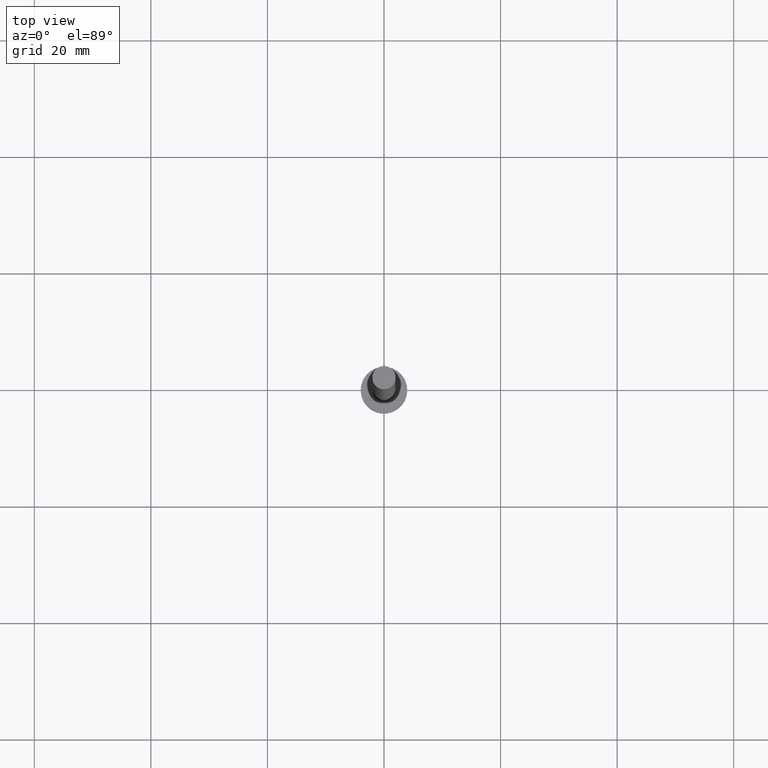
[diagram: clean part render]
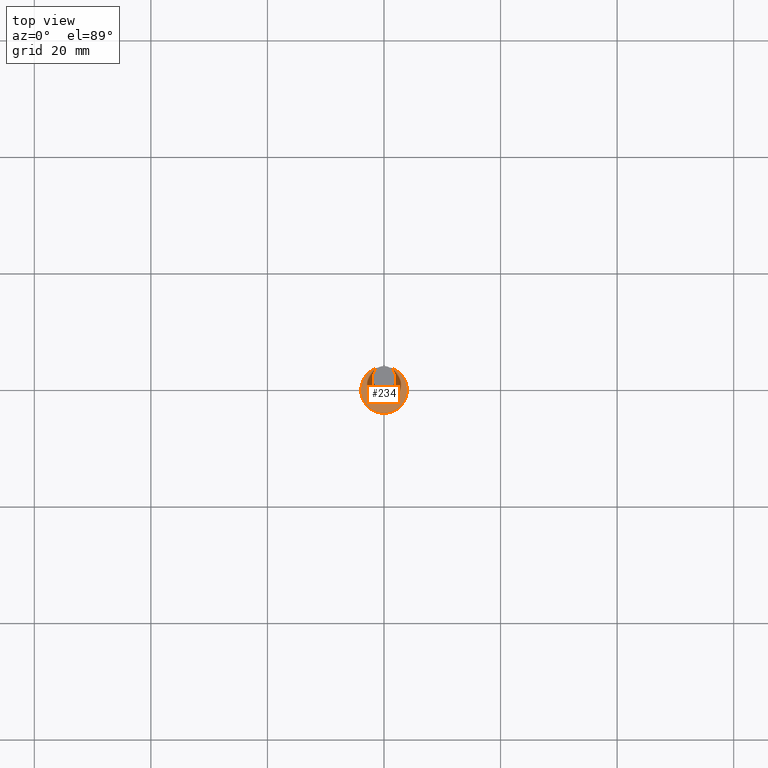
[diagram: same view with one face highlighted and labeled with its STEP entity id]
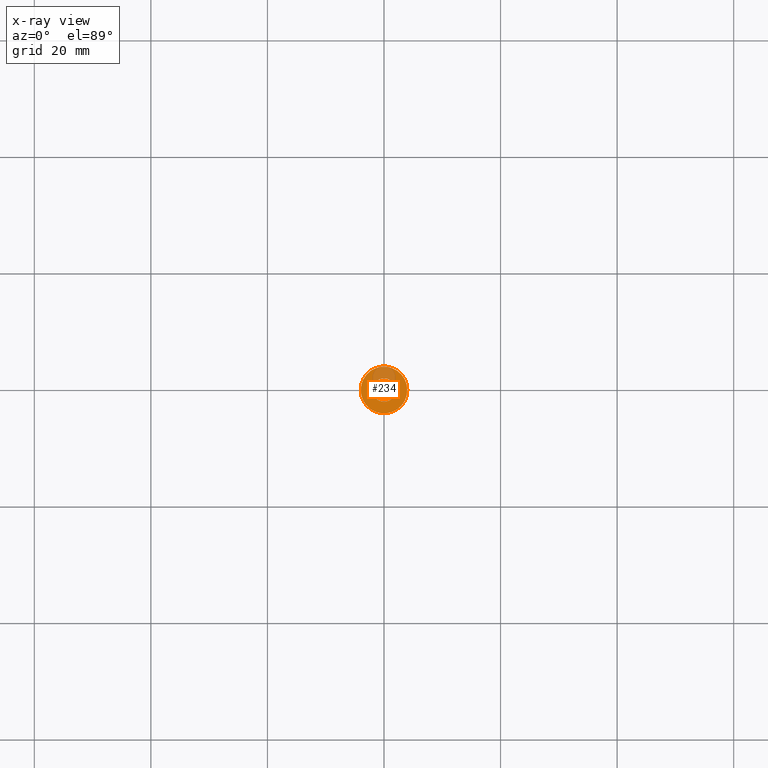
[diagram: x-ray of the same camera — body ghosted, the highlighted face saturated]
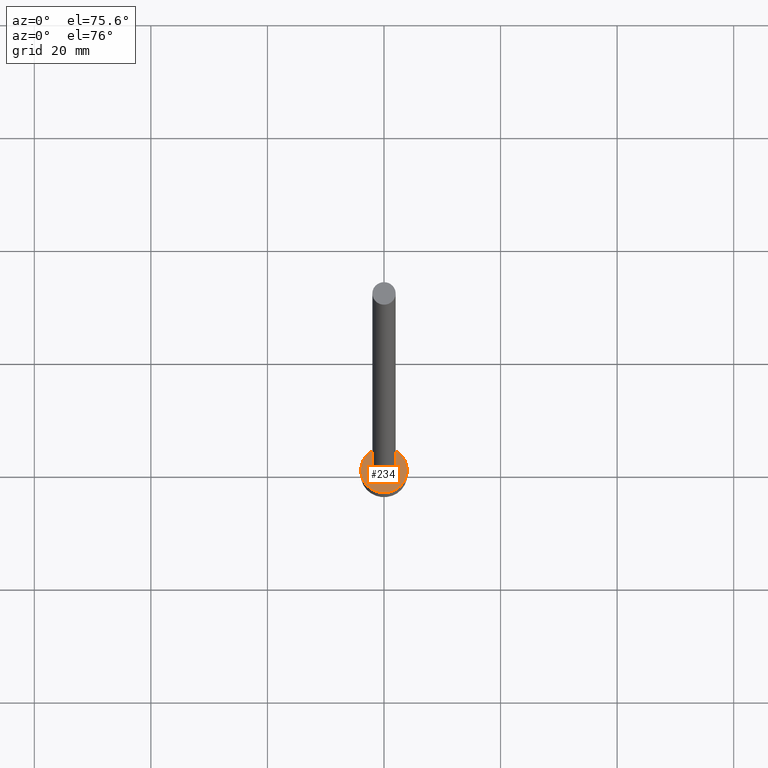
[diagram: same view with one face highlighted and labeled with its STEP entity id]
A machine part, top view. The second image highlights one B-rep face of the part: STEP entity #234.
The next image is the same camera in x-ray: the body ghosted, the highlighted face saturated — about 22% of this face is hidden behind the body in this view.
A second angle (auxiliary view) of the same face is appended — the face is thin or edge-on in the first view.
In plain terms, the highlighted planar face has unit normal (0, 0, 1).
Its self-contained STEP definition (entity closure, byte-faithful):
#7 = CIRCLE ( 'NONE', #86, 2.000000000000000000 ) ;
#24 = CARTESIAN_POINT ( 'NONE',  ( 0.000000000000000000, 0.000000000000000000, 3.000000000000000000 ) ) ;
#27 = CARTESIAN_POINT ( 'NONE',  ( 0.000000000000000000, 0.000000000000000000, 3.000000000000000000 ) ) ;
#30 = DIRECTION ( 'NONE',  ( 1.000000000000000000, 0.000000000000000000, 0.000000000000000000 ) ) ;
#42 = DIRECTION ( 'NONE',  ( 1.000000000000000000, 0.000000000000000000, 0.000000000000000000 ) ) ;
#49 = PLANE ( 'NONE',  #198 ) ;
#51 = VERTEX_POINT ( 'NONE', #57 ) ;
#57 = CARTESIAN_POINT ( 'NONE',  ( -2.000000000000000000, 0.000000000000000000, 3.000000000000000000 ) ) ;
#62 = CARTESIAN_POINT ( 'NONE',  ( 0.000000000000000000, 0.000000000000000000, 3.000000000000000000 ) ) ;
#74 = EDGE_CURVE ( 'NONE', #203, #215, #96, .T. ) ;
#86 = AXIS2_PLACEMENT_3D ( 'NONE', #24, #97, #124 ) ;
#87 = VERTEX_POINT ( 'NONE', #237 ) ;
#94 = DIRECTION ( 'NONE',  ( 0.000000000000000000, 0.000000000000000000, 1.000000000000000000 ) ) ;
#96 = CIRCLE ( 'NONE', #114, 4.000000000000000000 ) ;
#97 = DIRECTION ( 'NONE',  ( 0.000000000000000000, 0.000000000000000000, 1.000000000000000000 ) ) ;
#106 = ORIENTED_EDGE ( 'NONE', *, *, #250, .T. ) ;
#114 = AXIS2_PLACEMENT_3D ( 'NONE', #62, #157, #137 ) ;
#124 = DIRECTION ( 'NONE',  ( 1.000000000000000000, 0.000000000000000000, 0.000000000000000000 ) ) ;
#125 = ORIENTED_EDGE ( 'NONE', *, *, #187, .F. ) ;
#126 = FACE_BOUND ( 'NONE', #226, .T. ) ;
#129 = CARTESIAN_POINT ( 'NONE',  ( 4.000000000000000000, 4.898587196589412829E-16, 3.000000000000000000 ) ) ;
#137 = DIRECTION ( 'NONE',  ( 1.000000000000000000, 0.000000000000000000, 0.000000000000000000 ) ) ;
#143 = DIRECTION ( 'NONE',  ( 0.000000000000000000, 0.000000000000000000, 1.000000000000000000 ) ) ;
#147 = CIRCLE ( 'NONE', #228, 2.000000000000000000 ) ;
#151 = ORIENTED_EDGE ( 'NONE', *, *, #74, .T. ) ;
#152 = CIRCLE ( 'NONE', #194, 4.000000000000000000 ) ;
#157 = DIRECTION ( 'NONE',  ( 0.000000000000000000, 0.000000000000000000, 1.000000000000000000 ) ) ;
#178 = DIRECTION ( 'NONE',  ( 1.000000000000000000, 0.000000000000000000, -0.000000000000000000 ) ) ;
#180 = CARTESIAN_POINT ( 'NONE',  ( 0.000000000000000000, 0.000000000000000000, 3.000000000000000000 ) ) ;
#187 = EDGE_CURVE ( 'NONE', #87, #51, #147, .T. ) ;
#194 = AXIS2_PLACEMENT_3D ( 'NONE', #180, #247, #30 ) ;
#196 = CARTESIAN_POINT ( 'NONE',  ( -4.000000000000000000, 0.000000000000000000, 3.000000000000000000 ) ) ;
#198 = AXIS2_PLACEMENT_3D ( 'NONE', #243, #143, #178 ) ;
#200 = ORIENTED_EDGE ( 'NONE', *, *, #209, .F. ) ;
#203 = VERTEX_POINT ( 'NONE', #196 ) ;
#209 = EDGE_CURVE ( 'NONE', #51, #87, #7, .T. ) ;
#215 = VERTEX_POINT ( 'NONE', #129 ) ;
#221 = FACE_OUTER_BOUND ( 'NONE', #246, .T. ) ;
#226 = EDGE_LOOP ( 'NONE', ( #200, #125 ) ) ;
#228 = AXIS2_PLACEMENT_3D ( 'NONE', #27, #94, #42 ) ;
#234 = ADVANCED_FACE ( 'NONE', ( #126, #221 ), #49, .T. ) ;
#237 = CARTESIAN_POINT ( 'NONE',  ( 2.000000000000000000, 2.449293598294705921E-16, 3.000000000000000000 ) ) ;
#243 = CARTESIAN_POINT ( 'NONE',  ( 0.000000000000000000, 0.000000000000000000, 3.000000000000000000 ) ) ;
#246 = EDGE_LOOP ( 'NONE', ( #151, #106 ) ) ;
#247 = DIRECTION ( 'NONE',  ( 0.000000000000000000, 0.000000000000000000, 1.000000000000000000 ) ) ;
#250 = EDGE_CURVE ( 'NONE', #215, #203, #152, .T. ) ;